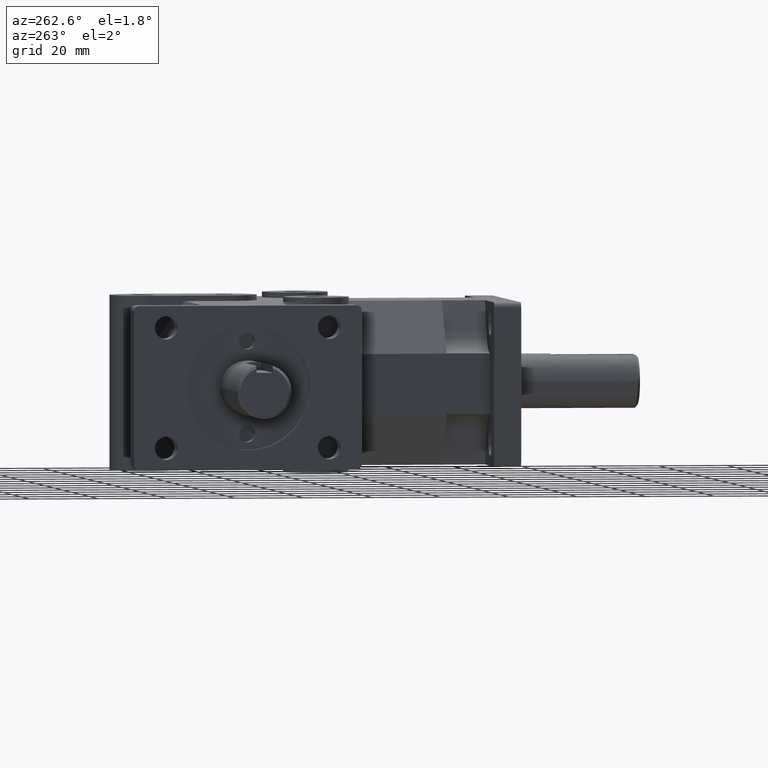
[diagram: clean part render]
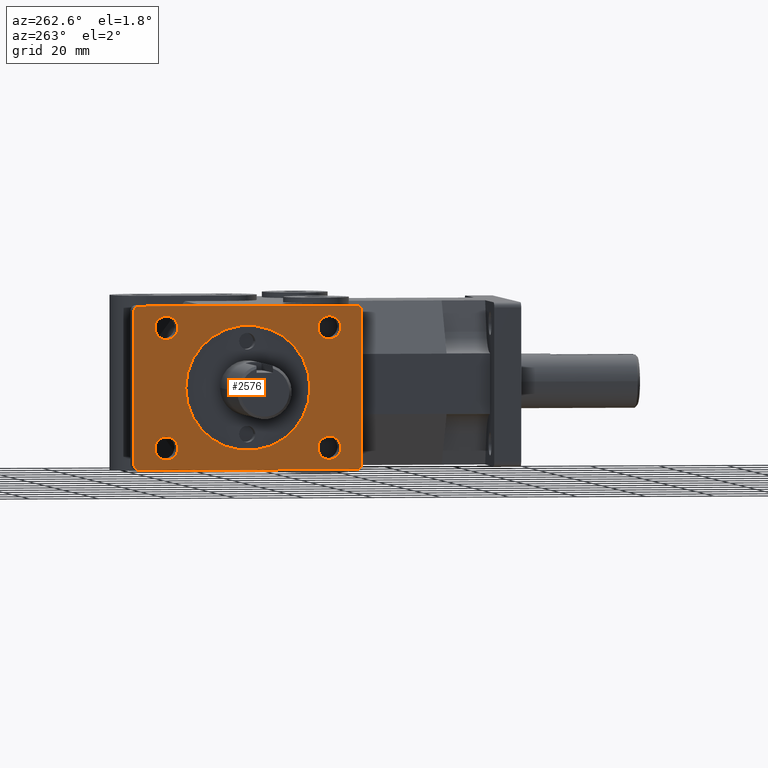
[diagram: same view with one face highlighted and labeled with its STEP entity id]
A machine part, auxiliary view. The second image highlights one B-rep face of the part: STEP entity #2576.
In plain terms, the highlighted planar face has unit normal (-1, 0, 0).
Its self-contained STEP definition (entity closure, byte-faithful):
#30=FACE_BOUND('',#342,.T.);
#31=FACE_BOUND('',#343,.T.);
#32=FACE_BOUND('',#344,.T.);
#33=FACE_BOUND('',#345,.T.);
#34=FACE_BOUND('',#346,.T.);
#66=PLANE('',#2776);
#183=FACE_OUTER_BOUND('',#341,.T.);
#341=EDGE_LOOP('',(#1834,#1835,#1836,#1837,#1838,#1839,#1840,#1841));
#342=EDGE_LOOP('',(#1842));
#343=EDGE_LOOP('',(#1843));
#344=EDGE_LOOP('',(#1844));
#345=EDGE_LOOP('',(#1845));
#346=EDGE_LOOP('',(#1846));
#517=LINE('',#3896,#782);
#518=LINE('',#3897,#783);
#519=LINE('',#3898,#784);
#520=LINE('',#3899,#785);
#782=VECTOR('',#3125,1.);
#783=VECTOR('',#3126,1.);
#784=VECTOR('',#3127,1.);
#785=VECTOR('',#3128,1.);
#1034=CIRCLE('',#2739,0.714);
#1042=CIRCLE('',#2753,0.06);
#1045=CIRCLE('',#2757,0.06);
#1046=CIRCLE('',#2759,0.06);
#1048=CIRCLE('',#2762,0.06);
#1058=CIRCLE('',#2777,0.1325);
#1059=CIRCLE('',#2778,0.1325);
#1060=CIRCLE('',#2779,0.1325);
#1061=CIRCLE('',#2780,0.1325);
#1142=VERTEX_POINT('',#3799);
#1150=VERTEX_POINT('',#3824);
#1151=VERTEX_POINT('',#3825);
#1156=VERTEX_POINT('',#3836);
#1157=VERTEX_POINT('',#3838);
#1158=VERTEX_POINT('',#3842);
#1159=VERTEX_POINT('',#3843);
#1162=VERTEX_POINT('',#3851);
#1163=VERTEX_POINT('',#3852);
#1182=VERTEX_POINT('',#3900);
#1183=VERTEX_POINT('',#3902);
#1184=VERTEX_POINT('',#3904);
#1185=VERTEX_POINT('',#3906);
#1390=EDGE_CURVE('',#1142,#1142,#1034,.T.);
#1401=EDGE_CURVE('',#1150,#1151,#1042,.T.);
#1407=EDGE_CURVE('',#1156,#1157,#1045,.T.);
#1409=EDGE_CURVE('',#1158,#1159,#1046,.T.);
#1413=EDGE_CURVE('',#1162,#1163,#1048,.T.);
#1433=EDGE_CURVE('',#1150,#1159,#517,.T.);
#1434=EDGE_CURVE('',#1163,#1158,#518,.T.);
#1435=EDGE_CURVE('',#1162,#1157,#519,.T.);
#1436=EDGE_CURVE('',#1156,#1151,#520,.T.);
#1437=EDGE_CURVE('',#1182,#1182,#1058,.T.);
#1438=EDGE_CURVE('',#1183,#1183,#1059,.T.);
#1439=EDGE_CURVE('',#1184,#1184,#1060,.T.);
#1440=EDGE_CURVE('',#1185,#1185,#1061,.T.);
#1834=ORIENTED_EDGE('',*,*,#1401,.F.);
#1835=ORIENTED_EDGE('',*,*,#1433,.T.);
#1836=ORIENTED_EDGE('',*,*,#1409,.F.);
#1837=ORIENTED_EDGE('',*,*,#1434,.F.);
#1838=ORIENTED_EDGE('',*,*,#1413,.F.);
#1839=ORIENTED_EDGE('',*,*,#1435,.T.);
#1840=ORIENTED_EDGE('',*,*,#1407,.F.);
#1841=ORIENTED_EDGE('',*,*,#1436,.T.);
#1842=ORIENTED_EDGE('',*,*,#1390,.T.);
#1843=ORIENTED_EDGE('',*,*,#1437,.T.);
#1844=ORIENTED_EDGE('',*,*,#1438,.T.);
#1845=ORIENTED_EDGE('',*,*,#1439,.T.);
#1846=ORIENTED_EDGE('',*,*,#1440,.T.);
#2576=ADVANCED_FACE('',(#183,#30,#31,#32,#33,#34),#66,.T.);
#2739=AXIS2_PLACEMENT_3D('',#3800,#3030,#3031);
#2753=AXIS2_PLACEMENT_3D('',#3826,#3061,#3062);
#2757=AXIS2_PLACEMENT_3D('',#3839,#3072,#3073);
#2759=AXIS2_PLACEMENT_3D('',#3844,#3077,#3078);
#2762=AXIS2_PLACEMENT_3D('',#3853,#3085,#3086);
#2776=AXIS2_PLACEMENT_3D('',#3895,#3123,#3124);
#2777=AXIS2_PLACEMENT_3D('',#3901,#3129,#3130);
#2778=AXIS2_PLACEMENT_3D('',#3903,#3131,#3132);
#2779=AXIS2_PLACEMENT_3D('',#3905,#3133,#3134);
#2780=AXIS2_PLACEMENT_3D('',#3907,#3135,#3136);
#3030=DIRECTION('center_axis',(1.,0.,0.));
#3031=DIRECTION('ref_axis',(0.,1.,0.));
#3061=DIRECTION('center_axis',(1.,0.,0.));
#3062=DIRECTION('ref_axis',(0.,0.70710678118655,-0.707106781186545));
#3072=DIRECTION('center_axis',(1.,0.,0.));
#3073=DIRECTION('ref_axis',(0.,0.70710678118655,0.707106781186545));
#3077=DIRECTION('center_axis',(1.,0.,0.));
#3078=DIRECTION('ref_axis',(0.,-0.707106781186545,-0.70710678118655));
#3085=DIRECTION('center_axis',(1.,0.,0.));
#3086=DIRECTION('ref_axis',(0.,-0.707106781186545,0.70710678118655));
#3123=DIRECTION('center_axis',(-1.,0.,0.));
#3124=DIRECTION('ref_axis',(0.,1.,0.));
#3125=DIRECTION('',(0.,-1.,0.));
#3126=DIRECTION('',(0.,0.,-1.));
#3127=DIRECTION('',(0.,1.,0.));
#3128=DIRECTION('',(0.,0.,-1.));
#3129=DIRECTION('center_axis',(1.,0.,0.));
#3130=DIRECTION('ref_axis',(0.,-1.,0.));
#3131=DIRECTION('center_axis',(1.,0.,0.));
#3132=DIRECTION('ref_axis',(0.,-1.,0.));
#3133=DIRECTION('center_axis',(1.,0.,0.));
#3134=DIRECTION('ref_axis',(0.,-1.,0.));
#3135=DIRECTION('center_axis',(1.,0.,0.));
#3136=DIRECTION('ref_axis',(0.,-1.,0.));
#3799=CARTESIAN_POINT('',(-2.125,2.536,-8.7439781459121E-17));
#3800=CARTESIAN_POINT('Origin',(-2.125,3.25,0.));
#3824=CARTESIAN_POINT('',(-2.125,4.5,-0.9375));
#3825=CARTESIAN_POINT('',(-2.125,4.56,-0.8775));
#3826=CARTESIAN_POINT('Origin',(-2.125,4.5,-0.8775));
#3836=CARTESIAN_POINT('',(-2.125,4.56,0.8775));
#3838=CARTESIAN_POINT('',(-2.125,4.5,0.9375));
#3839=CARTESIAN_POINT('Origin',(-2.125,4.5,0.8775));
#3842=CARTESIAN_POINT('',(-2.125,1.94,-0.8775));
#3843=CARTESIAN_POINT('',(-2.125,2.,-0.9375));
#3844=CARTESIAN_POINT('Origin',(-2.125,2.,-0.8775));
#3851=CARTESIAN_POINT('',(-2.125,2.,0.9375));
#3852=CARTESIAN_POINT('',(-2.125,1.94,0.8775));
#3853=CARTESIAN_POINT('Origin',(-2.125,2.,0.8775));
#3895=CARTESIAN_POINT('Origin',(-2.125,4.56,0.));
#3896=CARTESIAN_POINT('',(-2.125,1.94,-0.9375));
#3897=CARTESIAN_POINT('',(-2.125,1.94,0.));
#3898=CARTESIAN_POINT('',(-2.125,1.94,0.9375));
#3899=CARTESIAN_POINT('',(-2.125,4.56,0.));
#3900=CARTESIAN_POINT('',(-2.125,4.32,0.6875));
#3901=CARTESIAN_POINT('Origin',(-2.125,4.1875,0.6875));
#3902=CARTESIAN_POINT('',(-2.125,4.32,-0.6875));
#3903=CARTESIAN_POINT('Origin',(-2.125,4.1875,-0.6875));
#3904=CARTESIAN_POINT('',(-2.125,2.445,-0.6875));
#3905=CARTESIAN_POINT('Origin',(-2.125,2.3125,-0.6875));
#3906=CARTESIAN_POINT('',(-2.125,2.445,0.6875));
#3907=CARTESIAN_POINT('Origin',(-2.125,2.3125,0.6875));